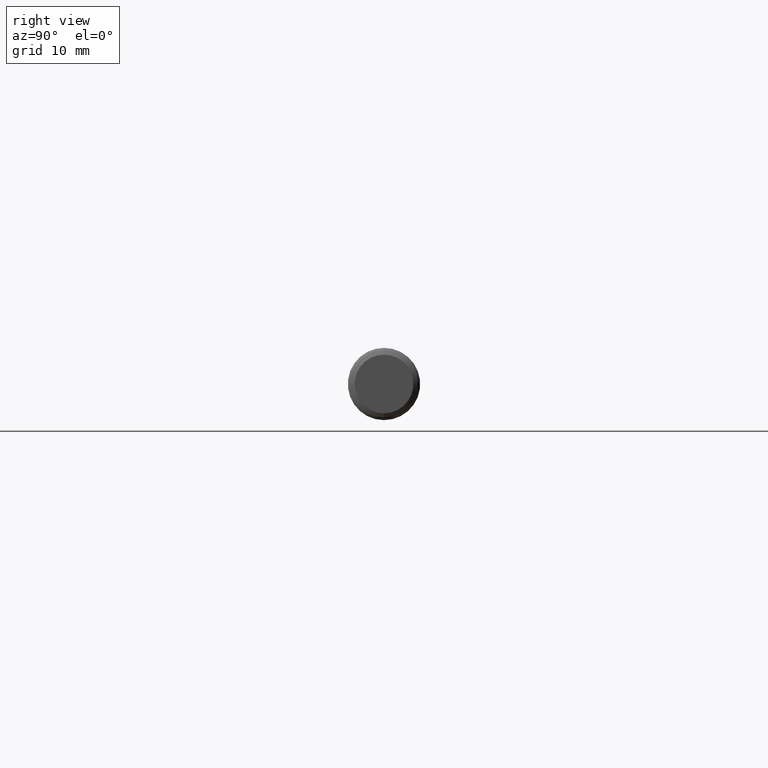
[diagram: clean part render]
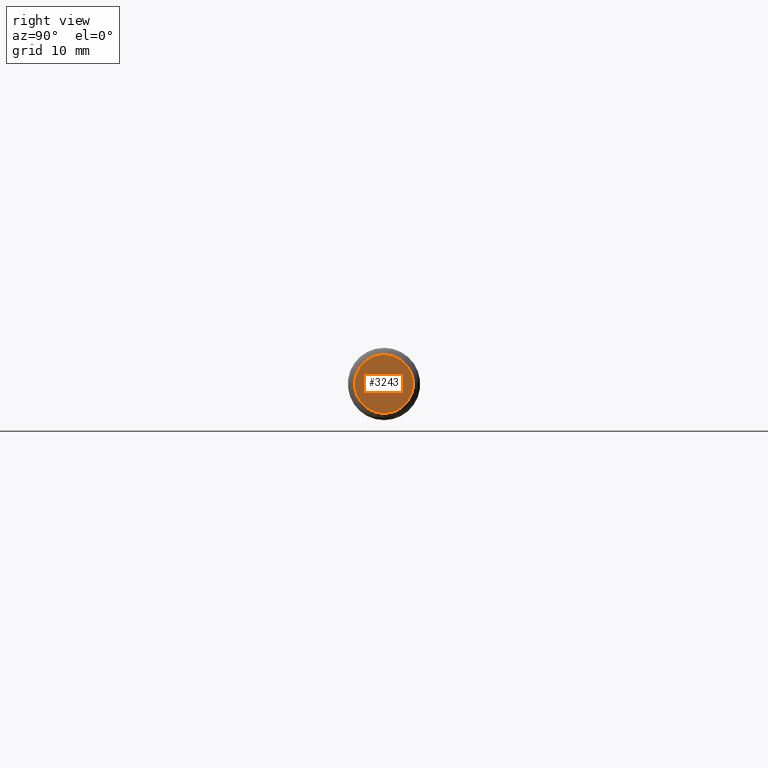
[diagram: same view with one face highlighted and labeled with its STEP entity id]
A machine part, right view. The second image highlights one B-rep face of the part: STEP entity #3243.
In plain terms, the highlighted planar face has unit normal (1, 0, -0).
Its self-contained STEP definition (entity closure, byte-faithful):
#290 = VERTEX_POINT ( 'NONE', #3102 ) ;
#325 = CARTESIAN_POINT ( 'NONE',  ( 2.500000000000000000, 0.000000000000000000, 0.000000000000000000 ) ) ;
#543 = DIRECTION ( 'NONE',  ( 1.000000000000000000, -0.000000000000000000, -0.000000000000000000 ) ) ;
#668 = DIRECTION ( 'NONE',  ( 1.000000000000000000, 0.000000000000000000, -0.000000000000000000 ) ) ;
#970 = AXIS2_PLACEMENT_3D ( 'NONE', #3178, #668, #3616 ) ;
#1020 = CARTESIAN_POINT ( 'NONE',  ( 2.500000000000000000, 1.242438331308729354E-17, -0.1014527888509375447 ) ) ;
#1473 = DIRECTION ( 'NONE',  ( 1.000000000000000000, -0.000000000000000000, -0.000000000000000000 ) ) ;
#1790 = CARTESIAN_POINT ( 'NONE',  ( 2.500000000000000000, 0.000000000000000000, 0.000000000000000000 ) ) ;
#2159 = ORIENTED_EDGE ( 'NONE', *, *, #2729, .T. ) ;
#2375 = PLANE ( 'NONE',  #970 ) ;
#2703 = ORIENTED_EDGE ( 'NONE', *, *, #2709, .T. ) ;
#2709 = EDGE_CURVE ( 'NONE', #3043, #290, #3624, .T. ) ;
#2729 = EDGE_CURVE ( 'NONE', #290, #3043, #5025, .T. ) ;
#2790 = FACE_OUTER_BOUND ( 'NONE', #4333, .T. ) ;
#3043 = VERTEX_POINT ( 'NONE', #1020 ) ;
#3102 = CARTESIAN_POINT ( 'NONE',  ( 2.500000000000000000, 0.000000000000000000, 0.1014527888509375447 ) ) ;
#3178 = CARTESIAN_POINT ( 'NONE',  ( 2.500000000000000000, 0.1170000000000000068, 0.000000000000000000 ) ) ;
#3243 = ADVANCED_FACE ( 'NONE', ( #2790 ), #2375, .T. ) ;
#3616 = DIRECTION ( 'NONE',  ( -0.000000000000000000, 0.000000000000000000, -1.000000000000000000 ) ) ;
#3624 = CIRCLE ( 'NONE', #4929, 0.1014527888509375447 ) ;
#4068 = AXIS2_PLACEMENT_3D ( 'NONE', #325, #1473, #5320 ) ;
#4333 = EDGE_LOOP ( 'NONE', ( #2159, #2703 ) ) ;
#4371 = DIRECTION ( 'NONE',  ( 0.000000000000000000, 0.000000000000000000, -1.000000000000000000 ) ) ;
#4929 = AXIS2_PLACEMENT_3D ( 'NONE', #1790, #543, #4371 ) ;
#5025 = CIRCLE ( 'NONE', #4068, 0.1014527888509375447 ) ;
#5320 = DIRECTION ( 'NONE',  ( 0.000000000000000000, 0.000000000000000000, -1.000000000000000000 ) ) ;